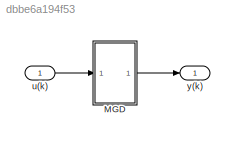
MODEL slx_dbbe6a194f53
KIND model
CONFIG AbsTol = auto
CONFIG EnableMultiTasking = off
CONFIG FixedStep = auto
CONFIG MaxStep = auto
CONFIG MinStep = auto
CONFIG RelTol = 1e-3
CONFIG SampleTimeConstraint = Unconstrained
CONFIG Solver = FixedStepDiscrete
CONFIG SolverName = FixedStepDiscrete
CONFIG StartTime = 0.0
CONFIG StopTime = 10.0
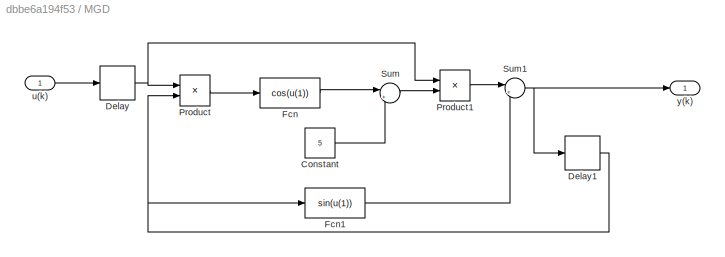
BLOCK [SubSystem] MGD 
  Ports = [1, 1]
  RequestExecContextInheritance = off
BLOCK [Constant] MGD /Constant
  Value = 5
BLOCK [Delay] MGD /Delay
  DelayLength = 1
  InitialCondition = 0
  InputPortMap = u0
  Ports = [1, 1]
BLOCK [Delay] MGD /Delay1
  DelayLength = 1
  InitialCondition = 0
  InputPortMap = u0
  Ports = [1, 1]
BLOCK [Fcn] MGD /Fcn
  Expr = cos(u(1))
BLOCK [Fcn] MGD /Fcn1
  Expr = sin(u(1))
BLOCK [Product] MGD /Product
  InputSameDT = off
  OutDataTypeStr = Inherit: Inherit via internal rule
  Ports = [2, 1]
  RndMeth = Floor
  SaturateOnIntegerOverflow = off
BLOCK [Product] MGD /Product1
  InputSameDT = off
  OutDataTypeStr = Inherit: Inherit via internal rule
  Ports = [2, 1]
  RndMeth = Floor
  SaturateOnIntegerOverflow = off
BLOCK [Sum] MGD /Sum
  IconShape = round
  InputSameDT = off
  Inputs = |++
  OutDataTypeStr = Inherit: Inherit via internal rule
  Ports = [2, 1]
  SaturateOnIntegerOverflow = off
BLOCK [Sum] MGD /Sum1
  IconShape = round
  InputSameDT = off
  Inputs = |++
  OutDataTypeStr = Inherit: Inherit via internal rule
  Ports = [2, 1]
  SaturateOnIntegerOverflow = off
BLOCK [Inport] MGD /u(k)
  IconDisplay = Port number
BLOCK [Outport] MGD /y(k)
  IconDisplay = Port number
BLOCK [Inport] u(k)
  IconDisplay = Port number
BLOCK [Outport] y(k)
  IconDisplay = Port number
LINE MGD /Constant:1 -> MGD /Sum:2
NET MGD /Delay1:1 -> MGD /Fcn1:1, MGD /Product:2
NET MGD /Delay:1 -> MGD /Product1:1, MGD /Product:1
LINE MGD /Fcn1:1 -> MGD /Sum1:2
LINE MGD /Fcn:1 -> MGD /Sum:1
LINE MGD /Product1:1 -> MGD /Sum1:1
LINE MGD /Product:1 -> MGD /Fcn:1
NET MGD /Sum1:1 -> MGD /Delay1:1, MGD /y(k):1
LINE MGD /Sum:1 -> MGD /Product1:2
LINE MGD /u(k):1 -> MGD /Delay:1
LINE MGD :1 -> y(k):1
LINE u(k):1 -> MGD :1
note: NET lines group one-source signal fan-out (src -> all destinations, sorted); 1:1 wires keep LINE
